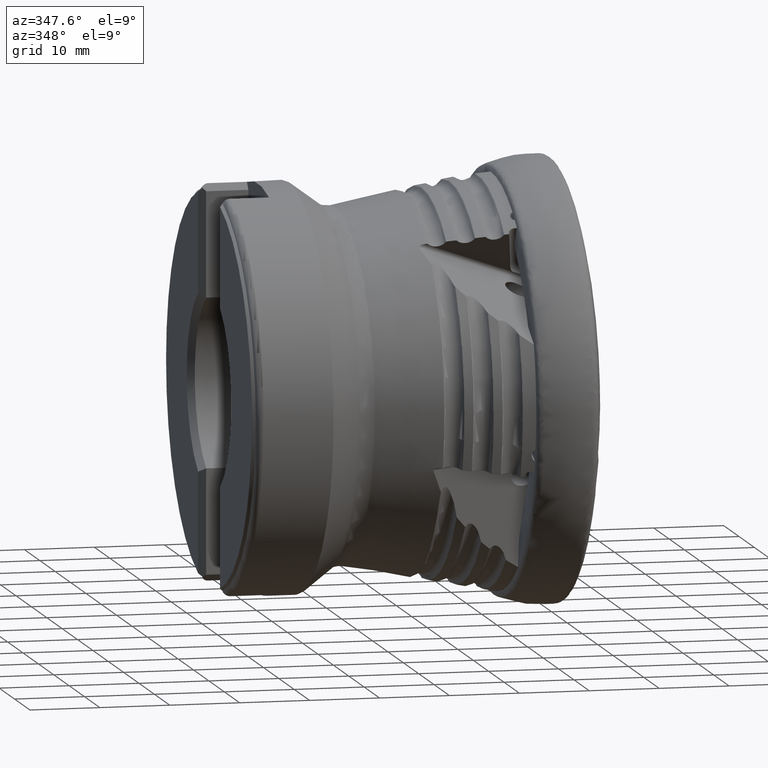
[diagram: clean part render]
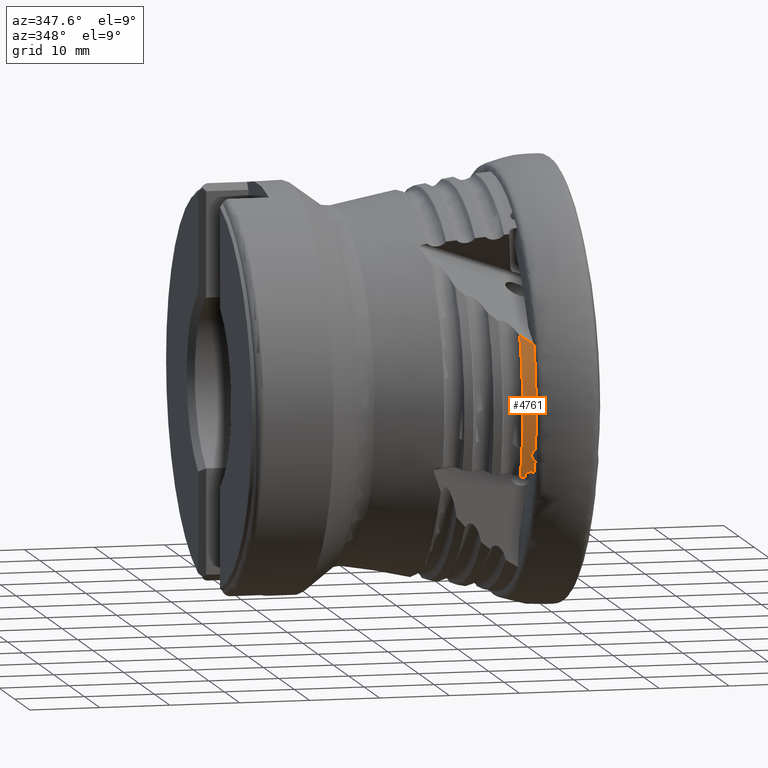
[diagram: same view with one face highlighted and labeled with its STEP entity id]
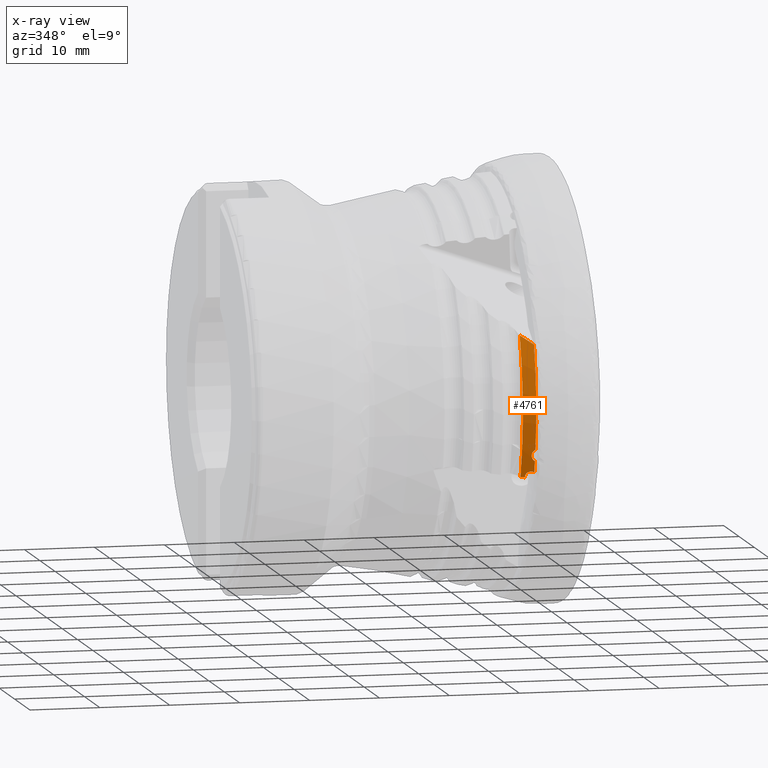
[diagram: x-ray of the same camera — body ghosted, the highlighted face saturated]
A machine part, auxiliary view. The second image highlights one B-rep face of the part: STEP entity #4761.
The next image is the same camera in x-ray: the body ghosted, the highlighted face saturated — about 0% of this face is hidden behind the body in this view.
In plain terms, the highlighted conical surface has half-angle 10.839 deg.
Its self-contained STEP definition (entity closure, byte-faithful):
#122 = CONICAL_SURFACE ( 'NONE', #6471, 29.60999999999999900, 0.1891723856149245300 ) ;
#210 = CARTESIAN_POINT ( 'NONE',  ( -9.120133705473502800, -28.67720203846365100, -6.503940639942727300 ) ) ;
#536 = ORIENTED_EDGE ( 'NONE', *, *, #1006, .T. ) ;
#563 = CARTESIAN_POINT ( 'NONE',  ( -9.865346990931067600, -27.83269803131542000, -9.035461537454656500 ) ) ;
#659 = FACE_OUTER_BOUND ( 'NONE', #7142, .T. ) ;
#952 = CARTESIAN_POINT ( 'NONE',  ( -8.678561578129050600, -29.00362825040331300, -5.331910624513600500 ) ) ;
#1006 = EDGE_CURVE ( 'NONE', #8508, #2631, #6325, .T. ) ;
#1039 = CARTESIAN_POINT ( 'NONE',  ( -9.166096818468853200, -28.77968692792777700, -5.991897218329799400 ) ) ;
#1081 =( BOUNDED_CURVE ( )  B_SPLINE_CURVE ( 3, ( #8041, #3128, #5511, #3162 ),
 .UNSPECIFIED., .F., .F. ) 
 B_SPLINE_CURVE_WITH_KNOTS ( ( 4, 4 ),
 ( 3.586532479907021300, 3.618658329095347300 ),
 .UNSPECIFIED. ) 
 CURVE ( )  GEOMETRIC_REPRESENTATION_ITEM ( )  RATIONAL_B_SPLINE_CURVE ( ( 1.000000000000000000, 0.9999139960003963200, 0.9999139960003963200, 1.000000000000000000 ) ) 
 REPRESENTATION_ITEM ( '' )  );
#1122 = DIRECTION ( 'NONE',  ( 0.0000000000000000000, 0.0000000000000000000, -1.000000000000000000 ) ) ;
#1254 = CARTESIAN_POINT ( 'NONE',  ( -8.678561578123096300, -28.20167546113333000, -8.620047782951397500 ) ) ;
#1357 = CARTESIAN_POINT ( 'NONE',  ( -9.060484058240394500, -28.13991523714133400, -8.571899666147077200 ) ) ;
#1465 = CARTESIAN_POINT ( 'NONE',  ( -9.899806682247417600, -27.76152479581691400, -9.230465456472220600 ) ) ;
#1626 = VERTEX_POINT ( 'NONE', #7136 ) ;
#1824 = CARTESIAN_POINT ( 'NONE',  ( -8.951158016444004800, -28.91301130138846900, -5.533964199707848600 ) ) ;
#1846 = EDGE_CURVE ( 'NONE', #9183, #2491, #8656, .T. ) ;
#1910 = CARTESIAN_POINT ( 'NONE',  ( -8.050000000000000700, 0.0000000000000000000, 0.0000000000000000000 ) ) ;
#1954 = CARTESIAN_POINT ( 'NONE',  ( -9.904259741611319600, -27.73972407207270400, -9.293330984703407800 ) ) ;
#2021 = CARTESIAN_POINT ( 'NONE',  ( -8.678561578123103400, -2.044719554162900500E-015, 0.0000000000000000000 ) ) ;
#2044 = CARTESIAN_POINT ( 'NONE',  ( -8.933177388307882400, -28.16050607870703700, -8.587950310118554100 ) ) ;
#2159 = CARTESIAN_POINT ( 'NONE',  ( -9.773428309184280800, -27.90683423603748600, -8.862140339249842600 ) ) ;
#2237 = ORIENTED_EDGE ( 'NONE', *, *, #4382, .F. ) ;
#2296 = ORIENTED_EDGE ( 'NONE', *, *, #6589, .T. ) ;
#2491 = VERTEX_POINT ( 'NONE', #5596 ) ;
#2585 = CARTESIAN_POINT ( 'NONE',  ( -9.913064204287277200, -27.69549832224498000, -9.418843347673938400 ) ) ;
#2603 = CIRCLE ( 'NONE', #6068, 29.48965450112049100 ) ;
#2631 = VERTEX_POINT ( 'NONE', #1357 ) ;
#2660 = CARTESIAN_POINT ( 'NONE',  ( -8.678561578129050600, -29.00362825040331300, -5.331910624513600500 ) ) ;
#2794 = CARTESIAN_POINT ( 'NONE',  ( -9.899806682247417600, -27.76152479581691400, -9.230465456472220600 ) ) ;
#2861 = DIRECTION ( 'NONE',  ( -1.176496303753504100E-016, 1.000000000000000000, 0.0000000000000000000 ) ) ;
#3008 = CARTESIAN_POINT ( 'NONE',  ( -9.476750344567337300, -28.04745818323815600, -8.602819187425232900 ) ) ;
#3032 = B_SPLINE_CURVE_WITH_KNOTS ( 'NONE', 3,
 ( #9157, #9975, #5079, #210, #5898, #1039, #6724, #1824, #7555, #2660 ),
 .UNSPECIFIED., .F., .F.,
 ( 4, 2, 2, 2, 4 ),
 ( 0.0007309363575628640400, 0.001250226468820962400, 0.001769516580079060800, 0.002288806691337159400, 0.002808096802595257600 ),
 .UNSPECIFIED. ) ;
#3059 = CARTESIAN_POINT ( 'NONE',  ( -8.678561578123103400, -2.044719554162900500E-015, 0.0000000000000000000 ) ) ;
#3128 = CARTESIAN_POINT ( 'NONE',  ( -9.928997186598463600, -27.41472267060207500, 10.20996032777999900 ) ) ;
#3162 = CARTESIAN_POINT ( 'NONE',  ( -8.678561578123089100, -27.95931066205118400, 9.376388958355319000 ) ) ;
#3423 = ORIENTED_EDGE ( 'NONE', *, *, #8867, .F. ) ;
#3439 = CARTESIAN_POINT ( 'NONE',  ( -10.52432852026477800, -27.13245888427858400, 10.61844454231616900 ) ) ;
#3614 = CARTESIAN_POINT ( 'NONE',  ( -9.908678931790111800, -27.71771516703959300, -9.356123844801851800 ) ) ;
#3821 = CARTESIAN_POINT ( 'NONE',  ( -9.060484058240394500, -28.13991523714133400, -8.571899666147077200 ) ) ;
#3877 = DIRECTION ( 'NONE',  ( -1.176496303753504100E-016, 1.000000000000000000, 0.0000000000000000000 ) ) ;
#3982 = CARTESIAN_POINT ( 'NONE',  ( -10.52432852026480400, 0.0000000000000000000, 0.0000000000000000000 ) ) ;
#4232 = CARTESIAN_POINT ( 'NONE',  ( -10.52432852026480400, -27.59791833627934900, -9.342194234191856200 ) ) ;
#4382 = EDGE_CURVE ( 'NONE', #6584, #10137, #1081, .T. ) ;
#4455 = ORIENTED_EDGE ( 'NONE', *, *, #9447, .F. ) ;
#4527 = VERTEX_POINT ( 'NONE', #952 ) ;
#4631 = AXIS2_PLACEMENT_3D ( 'NONE', #3982, #9700, #4803 ) ;
#4761 = ADVANCED_FACE ( 'NONE', ( #659 ), #122, .T. ) ;
#4803 = DIRECTION ( 'NONE',  ( 0.0000000000000000000, 0.0000000000000000000, -1.000000000000000000 ) ) ;
#4923 = B_SPLINE_CURVE_WITH_KNOTS ( 'NONE', 3,
 ( #1254, #9373, #2044, #7768 ),
 .UNSPECIFIED., .F., .F.,
 ( 4, 4 ),
 ( 0.0007000887697979771800, 0.001089957141319306900 ),
 .UNSPECIFIED. ) ;
#4992 = EDGE_CURVE ( 'NONE', #6584, #2491, #7264, .T. ) ;
#5079 = CARTESIAN_POINT ( 'NONE',  ( -8.950264790301593700, -28.64081047035369900, -6.804476635205355200 ) ) ;
#5106 = VERTEX_POINT ( 'NONE', #8970 ) ;
#5175 = DIRECTION ( 'NONE',  ( 1.000000000000000000, -0.0000000000000000000, -0.0000000000000000000 ) ) ;
#5351 = EDGE_CURVE ( 'NONE', #8508, #9183, #7209, .T. ) ;
#5410 = CARTESIAN_POINT ( 'NONE',  ( -8.678561578123089100, -27.95931066205118400, 9.376388958355319000 ) ) ;
#5417 = EDGE_CURVE ( 'NONE', #10137, #4527, #2603, .T. ) ;
#5511 = CARTESIAN_POINT ( 'NONE',  ( -9.313688620220194300, -27.69036363608508800, 9.795906189481106800 ) ) ;
#5596 = CARTESIAN_POINT ( 'NONE',  ( -10.52432852026480400, -27.59791833627934900, -9.342194234191856200 ) ) ;
#5898 = CARTESIAN_POINT ( 'NONE',  ( -9.165979301800801300, -28.70690340665765200, -6.331526796652283000 ) ) ;
#6068 = AXIS2_PLACEMENT_3D ( 'NONE', #2021, #7746, #2861 ) ;
#6247 = CARTESIAN_POINT ( 'NONE',  ( -9.892749152783054000, -27.79607615424178100, -9.130831635872095100 ) ) ;
#6325 = B_SPLINE_CURVE_WITH_KNOTS ( 'NONE', 3,
 ( #7072, #6247, #563, #2159, #7885, #3008, #8708, #3821 ),
 .UNSPECIFIED., .F., .F.,
 ( 4, 2, 2, 4 ),
 ( 3.878959614448864200E-018, 0.0003125708344057500300, 0.0006251416688114961600, 0.001250283337622984700 ),
 .UNSPECIFIED. ) ;
#6471 = AXIS2_PLACEMENT_3D ( 'NONE', #1910, #5175, #1122 ) ;
#6584 = VERTEX_POINT ( 'NONE', #3439 ) ;
#6589 = EDGE_CURVE ( 'NONE', #1626, #4527, #3032, .T. ) ;
#6688 = CARTESIAN_POINT ( 'NONE',  ( -9.913064204287277200, -27.69549832224498000, -9.418843347673938400 ) ) ;
#6724 = CARTESIAN_POINT ( 'NONE',  ( -9.120960577050556900, -28.82285762054339900, -5.823817738824349300 ) ) ;
#7072 = CARTESIAN_POINT ( 'NONE',  ( -9.899806682247417600, -27.76152479581691400, -9.230465456472220600 ) ) ;
#7136 = CARTESIAN_POINT ( 'NONE',  ( -8.678561578118184600, -28.64049871857632500, -7.025777946016987100 ) ) ;
#7142 = EDGE_LOOP ( 'NONE', ( #7158, #2237, #7701, #9888, #8820, #536, #3423, #4455, #2296 ) ) ;
#7158 = ORIENTED_EDGE ( 'NONE', *, *, #5417, .F. ) ;
#7209 =( BOUNDED_CURVE ( )  B_SPLINE_CURVE ( 3, ( #2794, #1954, #3614, #9317 ),
 .UNSPECIFIED., .F., .F. ) 
 B_SPLINE_CURVE_WITH_KNOTS ( ( 4, 4 ),
 ( 2.730556587858910400, 2.737182019435785700 ),
 .UNSPECIFIED. ) 
 CURVE ( )  GEOMETRIC_REPRESENTATION_ITEM ( )  RATIONAL_B_SPLINE_CURVE ( ( 1.000000000000000000, 0.9999963419747135400, 0.9999963419747135400, 1.000000000000000000 ) ) 
 REPRESENTATION_ITEM ( '' )  );
#7215 = CIRCLE ( 'NONE', #7703, 29.48965450112049100 ) ;
#7264 = CIRCLE ( 'NONE', #4631, 29.13626073478392800 ) ;
#7447 = CARTESIAN_POINT ( 'NONE',  ( -10.11682074903422400, -27.66298058992012800, -9.393296414261044400 ) ) ;
#7555 = CARTESIAN_POINT ( 'NONE',  ( -8.825864984860738000, -28.96016661448613000, -5.412341333906361700 ) ) ;
#7701 = ORIENTED_EDGE ( 'NONE', *, *, #4992, .T. ) ;
#7703 = AXIS2_PLACEMENT_3D ( 'NONE', #3059, #8760, #3877 ) ;
#7746 = DIRECTION ( 'NONE',  ( 1.000000000000000000, 1.219500470639142200E-016, -0.0000000000000000000 ) ) ;
#7768 = CARTESIAN_POINT ( 'NONE',  ( -9.060484058240394500, -28.13991523714133400, -8.571899666147077200 ) ) ;
#7885 = CARTESIAN_POINT ( 'NONE',  ( -9.709072571942570600, -27.94392489090811100, -8.785417943418934800 ) ) ;
#8041 = CARTESIAN_POINT ( 'NONE',  ( -10.52432852026477800, -27.13245888427858400, 10.61844454231616900 ) ) ;
#8508 = VERTEX_POINT ( 'NONE', #1465 ) ;
#8656 = B_SPLINE_CURVE_WITH_KNOTS ( 'NONE', 3,
 ( #2585, #7447, #9125, #4232 ),
 .UNSPECIFIED., .F., .F.,
 ( 4, 4 ),
 ( 0.001970187077739875700, 0.002593918587538400500 ),
 .UNSPECIFIED. ) ;
#8708 = CARTESIAN_POINT ( 'NONE',  ( -9.267553626322628800, -28.10642338104518600, -8.545792629364344300 ) ) ;
#8760 = DIRECTION ( 'NONE',  ( 1.000000000000000000, 1.219500470639142200E-016, -0.0000000000000000000 ) ) ;
#8820 = ORIENTED_EDGE ( 'NONE', *, *, #5351, .F. ) ;
#8867 = EDGE_CURVE ( 'NONE', #5106, #2631, #4923, .T. ) ;
#8970 = CARTESIAN_POINT ( 'NONE',  ( -8.678561578123096300, -28.20167546113333000, -8.620047782951397500 ) ) ;
#9125 = CARTESIAN_POINT ( 'NONE',  ( -10.32057552851331500, -27.63045396341114900, -9.367746720744573700 ) ) ;
#9157 = CARTESIAN_POINT ( 'NONE',  ( -8.678561578118184600, -28.64049871857632500, -7.025777946016987100 ) ) ;
#9183 = VERTEX_POINT ( 'NONE', #6688 ) ;
#9317 = CARTESIAN_POINT ( 'NONE',  ( -9.913064204287277200, -27.69549832224498000, -9.418843347673938400 ) ) ;
#9373 = CARTESIAN_POINT ( 'NONE',  ( -8.805869892746669000, -28.18109280987661300, -8.603999679246054900 ) ) ;
#9447 = EDGE_CURVE ( 'NONE', #1626, #5106, #7215, .T. ) ;
#9700 = DIRECTION ( 'NONE',  ( 1.000000000000000000, -0.0000000000000000000, -0.0000000000000000000 ) ) ;
#9888 = ORIENTED_EDGE ( 'NONE', *, *, #1846, .F. ) ;
#9975 = CARTESIAN_POINT ( 'NONE',  ( -8.826262761475407000, -28.63394809583377700, -6.933784065355192500 ) ) ;
#10137 = VERTEX_POINT ( 'NONE', #5410 ) ;